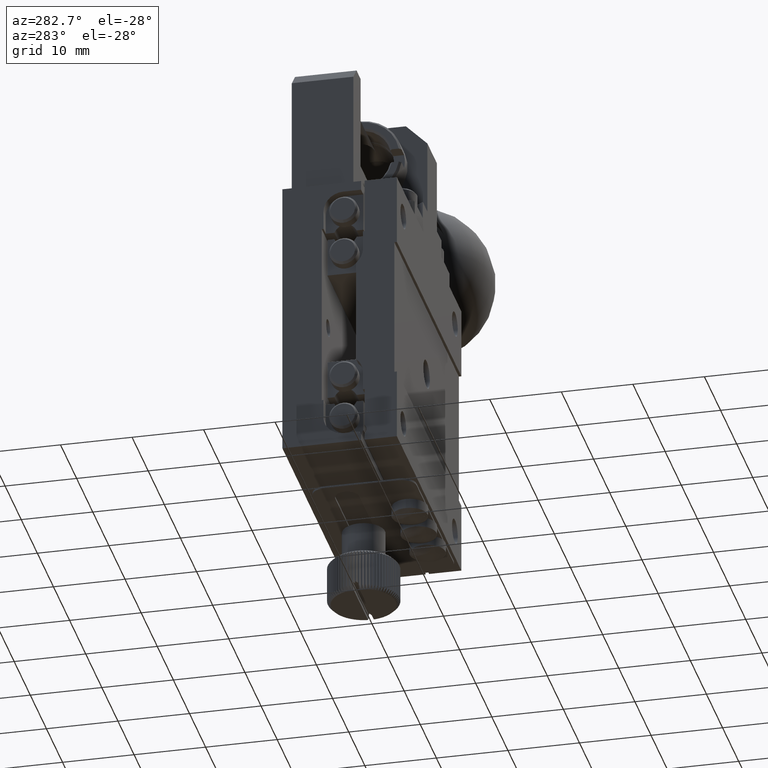
[diagram: clean part render]
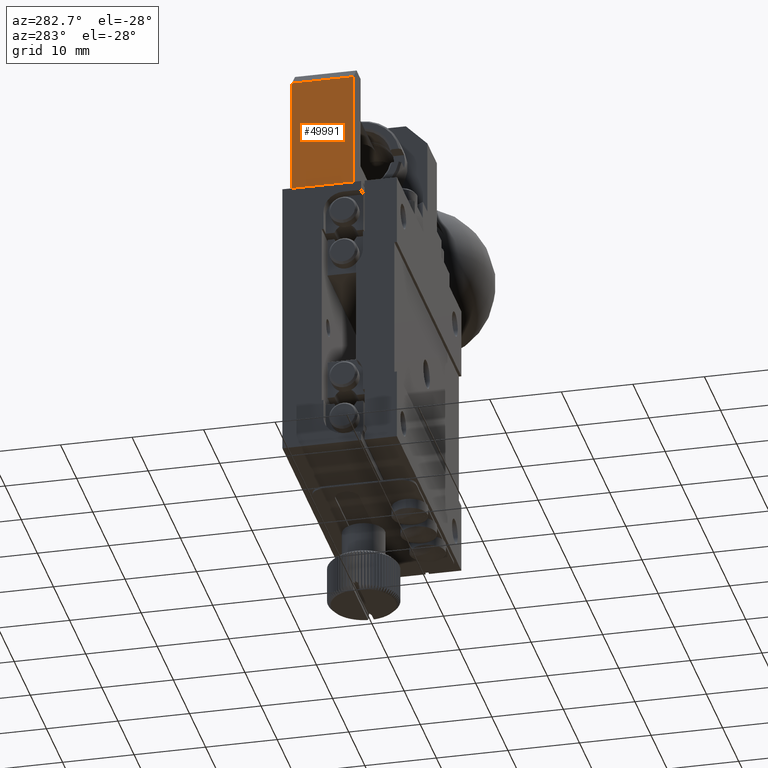
[diagram: same view with one face highlighted and labeled with its STEP entity id]
A machine part, auxiliary view. The second image highlights one B-rep face of the part: STEP entity #49991.
In plain terms, the highlighted planar face has unit normal (-1, 0, 0).
Its self-contained STEP definition (entity closure, byte-faithful):
#598 = ORIENTED_EDGE ( 'NONE', *, *, #23890, .T. ) ;
#904 = EDGE_CURVE ( 'NONE', #23763, #26404, #54821, .T. ) ;
#2096 = PLANE ( 'NONE',  #49321 ) ;
#5729 = CARTESIAN_POINT ( 'NONE',  ( 1.609590059148114483, 6.200000000000001954, 36.50000000000000000 ) ) ;
#14641 = VERTEX_POINT ( 'NONE', #32310 ) ;
#16530 = LINE ( 'NONE', #89370, #26145 ) ;
#23763 = VERTEX_POINT ( 'NONE', #70108 ) ;
#23890 = EDGE_CURVE ( 'NONE', #93663, #23763, #39331, .T. ) ;
#25186 = CARTESIAN_POINT ( 'NONE',  ( 1.609590059148118035, 14.80000000000000071, 20.00000000000000000 ) ) ;
#26145 = VECTOR ( 'NONE', #52482, 1000.000000000000000 ) ;
#26271 = LINE ( 'NONE', #92314, #50391 ) ;
#26404 = VERTEX_POINT ( 'NONE', #73439 ) ;
#32310 = CARTESIAN_POINT ( 'NONE',  ( 1.609590059148118035, 6.200000000000001954, 20.00000000000000000 ) ) ;
#35379 = ORIENTED_EDGE ( 'NONE', *, *, #68324, .T. ) ;
#39026 = CARTESIAN_POINT ( 'NONE',  ( 1.609590059148118035, 6.200000000000001954, 20.00000000000000000 ) ) ;
#39331 = LINE ( 'NONE', #47610, #65563 ) ;
#42909 = EDGE_LOOP ( 'NONE', ( #79035, #598, #59050, #35379 ) ) ;
#45843 = DIRECTION ( 'NONE',  ( -1.000000000000000000, 0.000000000000000000, 0.000000000000000000 ) ) ;
#47610 = CARTESIAN_POINT ( 'NONE',  ( 1.609590059148118035, 6.200000000000001954, 36.50000000000000711 ) ) ;
#49321 = AXIS2_PLACEMENT_3D ( 'NONE', #39026, #45843, #52698 ) ;
#49991 = ADVANCED_FACE ( 'NONE', ( #68704 ), #2096, .T. ) ;
#50391 = VECTOR ( 'NONE', #77291, 1000.000000000000000 ) ;
#52482 = DIRECTION ( 'NONE',  ( -0.000000000000000000, -1.000000000000000000, -0.000000000000000000 ) ) ;
#52698 = DIRECTION ( 'NONE',  ( 0.000000000000000000, 0.000000000000000000, 1.000000000000000000 ) ) ;
#54821 = LINE ( 'NONE', #25186, #95934 ) ;
#59050 = ORIENTED_EDGE ( 'NONE', *, *, #904, .T. ) ;
#61739 = DIRECTION ( 'NONE',  ( 0.000000000000000000, 1.000000000000000000, -0.000000000000000000 ) ) ;
#65563 = VECTOR ( 'NONE', #61739, 1000.000000000000000 ) ;
#68324 = EDGE_CURVE ( 'NONE', #26404, #14641, #16530, .T. ) ;
#68704 = FACE_OUTER_BOUND ( 'NONE', #42909, .T. ) ;
#70108 = CARTESIAN_POINT ( 'NONE',  ( 1.609590059148121366, 14.80000000000000071, 36.50000000000001421 ) ) ;
#73439 = CARTESIAN_POINT ( 'NONE',  ( 1.609590059148118035, 14.80000000000000071, 20.00000000000000000 ) ) ;
#77291 = DIRECTION ( 'NONE',  ( 0.000000000000000000, -0.000000000000000000, 1.000000000000000000 ) ) ;
#79035 = ORIENTED_EDGE ( 'NONE', *, *, #90820, .T. ) ;
#89370 = CARTESIAN_POINT ( 'NONE',  ( 1.609590059148118035, 16.00000000000000000, 20.00000000000000000 ) ) ;
#90761 = DIRECTION ( 'NONE',  ( -0.000000000000000000, -0.000000000000000000, -1.000000000000000000 ) ) ;
#90820 = EDGE_CURVE ( 'NONE', #14641, #93663, #26271, .T. ) ;
#92314 = CARTESIAN_POINT ( 'NONE',  ( 1.609590059148118035, 6.200000000000001954, 0.000000000000000000 ) ) ;
#93663 = VERTEX_POINT ( 'NONE', #5729 ) ;
#95934 = VECTOR ( 'NONE', #90761, 1000.000000000000000 ) ;